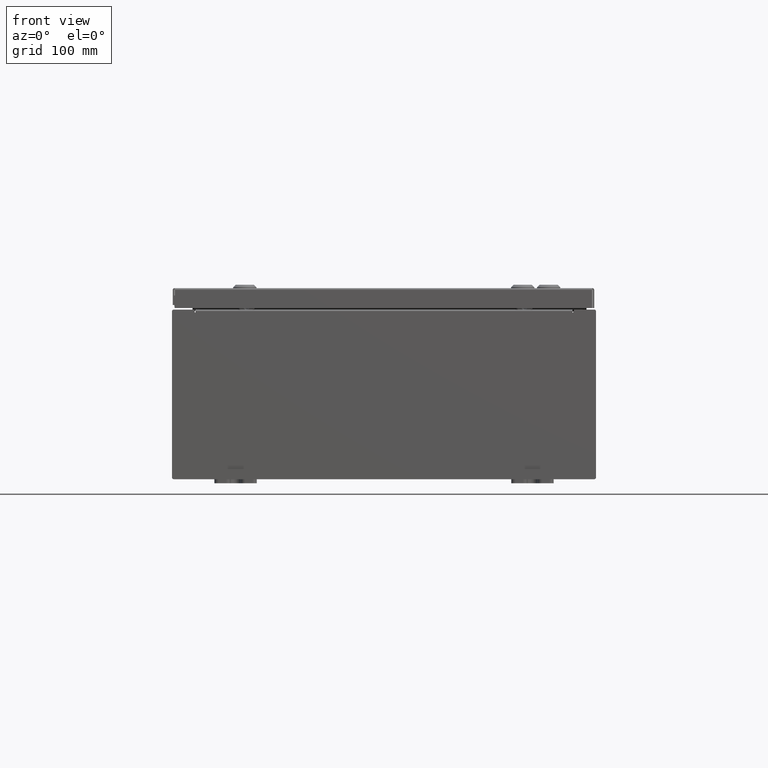
[diagram: clean part render]
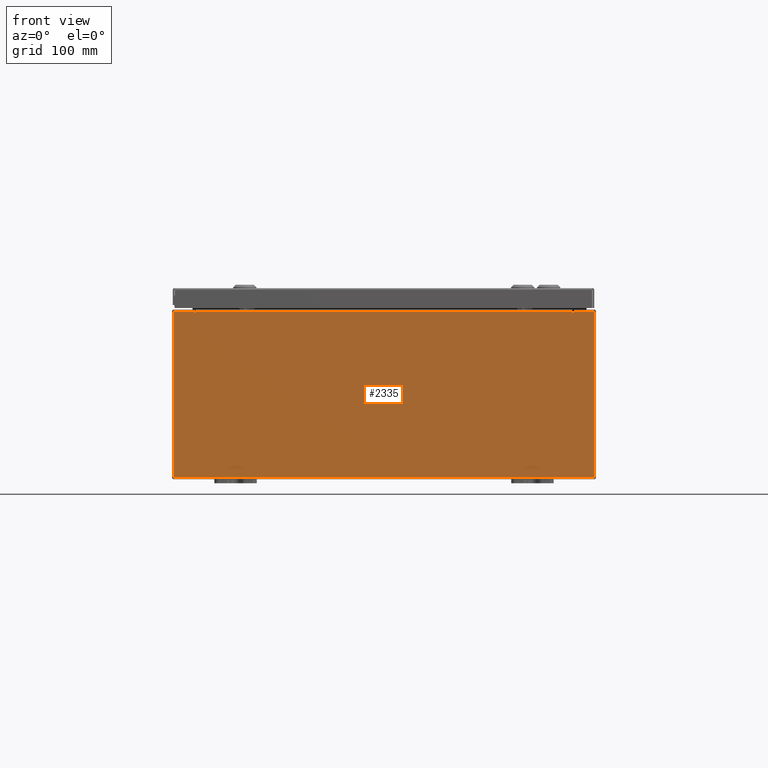
[diagram: same view with one face highlighted and labeled with its STEP entity id]
A machine part, front view. The second image highlights one B-rep face of the part: STEP entity #2335.
In plain terms, the highlighted planar face has unit normal (-0, 1, -0).
Its self-contained STEP definition (entity closure, byte-faithful):
#191 = CARTESIAN_POINT ( 'NONE',  ( 8.924549999999831200, -0.0000000000000000000, -3.873765880731813500E-013 ) ) ;
#490 = CARTESIAN_POINT ( 'NONE',  ( -8.905874999999998200, 0.0000000000000000000, 3.874949999999999700 ) ) ;
#541 = LINE ( 'NONE', #52134, #51121 ) ;
#1142 = ORIENTED_EDGE ( 'NONE', *, *, #18588, .F. ) ;
#1443 = LINE ( 'NONE', #4635, #11370 ) ;
#1983 = CARTESIAN_POINT ( 'NONE',  ( 8.924550000000000000, 0.0000000000000000000, 3.874949999999999700 ) ) ;
#2044 = ORIENTED_EDGE ( 'NONE', *, *, #51021, .F. ) ;
#2266 = LINE ( 'NONE', #22163, #51345 ) ;
#2335 = ADVANCED_FACE ( 'NONE', ( #9924 ), #49783, .F. ) ;
#2421 = ORIENTED_EDGE ( 'NONE', *, *, #62088, .T. ) ;
#2693 = DIRECTION ( 'NONE',  ( 1.000000000000000000, 0.0000000000000000000, 0.0000000000000000000 ) ) ;
#2920 = VECTOR ( 'NONE', #19784, 39.37007874015748100 ) ;
#4073 = ORIENTED_EDGE ( 'NONE', *, *, #62641, .T. ) ;
#4635 = CARTESIAN_POINT ( 'NONE',  ( -9.925300000000000000, 0.0000000000000000000, -3.925299999999999600 ) ) ;
#4818 = DIRECTION ( 'NONE',  ( -0.0000000000000000000, -0.0000000000000000000, 1.000000000000000000 ) ) ;
#5411 = DIRECTION ( 'NONE',  ( 0.0000000000000000000, 0.0000000000000000000, -1.000000000000000000 ) ) ;
#6343 = ORIENTED_EDGE ( 'NONE', *, *, #11928, .F. ) ;
#7389 = LINE ( 'NONE', #45868, #57980 ) ;
#8020 = ORIENTED_EDGE ( 'NONE', *, *, #43869, .F. ) ;
#8392 = LINE ( 'NONE', #9370, #58986 ) ;
#9370 = CARTESIAN_POINT ( 'NONE',  ( -8.887200000000000000, 1.024442997624098700E-016, 3.912299999999999700 ) ) ;
#9664 = CARTESIAN_POINT ( 'NONE',  ( 8.887200000000000000, 0.0000000000000000000, 3.912299999999999700 ) ) ;
#9924 = FACE_OUTER_BOUND ( 'NONE', #31774, .T. ) ;
#11370 = VECTOR ( 'NONE', #38451, 39.37007874015748100 ) ;
#11928 = EDGE_CURVE ( 'NONE', #31611, #57739, #28082, .T. ) ;
#14099 = VERTEX_POINT ( 'NONE', #34730 ) ;
#14280 = DIRECTION ( 'NONE',  ( 1.000000000000000000, 0.0000000000000000000, 0.0000000000000000000 ) ) ;
#14524 = CARTESIAN_POINT ( 'NONE',  ( 9.925300000000000000, 0.0000000000000000000, -3.925299999999999600 ) ) ;
#15288 = CARTESIAN_POINT ( 'NONE',  ( 8.905875000000000000, 0.0000000000000000000, 3.874949999999999700 ) ) ;
#17656 = ORIENTED_EDGE ( 'NONE', *, *, #54482, .T. ) ;
#17690 = CARTESIAN_POINT ( 'NONE',  ( 8.887200000000000000, 0.0000000000000000000, 3.874949999999999700 ) ) ;
#17714 = VERTEX_POINT ( 'NONE', #9664 ) ;
#18410 = CARTESIAN_POINT ( 'NONE',  ( -8.887200000000000000, -0.0000000000000000000, 3.874949999999999700 ) ) ;
#18588 = EDGE_CURVE ( 'NONE', #23178, #31611, #21860, .T. ) ;
#19220 = CARTESIAN_POINT ( 'NONE',  ( -9.925300000000000000, 0.0000000000000000000, 3.925299999999999600 ) ) ;
#19476 = AXIS2_PLACEMENT_3D ( 'NONE', #490, #34699, #5411 ) ;
#19784 = DIRECTION ( 'NONE',  ( 0.0000000000000000000, 0.0000000000000000000, -1.000000000000000000 ) ) ;
#19819 = LINE ( 'NONE', #19220, #31330 ) ;
#20205 = DIRECTION ( 'NONE',  ( 0.0000000000000000000, 0.0000000000000000000, -1.000000000000000000 ) ) ;
#21675 = CARTESIAN_POINT ( 'NONE',  ( 9.925300000000000000, 0.0000000000000000000, 3.925299999999999600 ) ) ;
#21860 = LINE ( 'NONE', #191, #59466 ) ;
#22163 = CARTESIAN_POINT ( 'NONE',  ( -9.925300000000000000, 0.0000000000000000000, 3.925299999999999600 ) ) ;
#23178 = VERTEX_POINT ( 'NONE', #56870 ) ;
#24981 = EDGE_CURVE ( 'NONE', #57739, #17714, #55223, .T. ) ;
#25125 = CARTESIAN_POINT ( 'NONE',  ( 0.0000000000000000000, 0.0000000000000000000, 0.0000000000000000000 ) ) ;
#25337 = DIRECTION ( 'NONE',  ( 0.0000000000000000000, -0.0000000000000000000, -1.000000000000000000 ) ) ;
#26309 = EDGE_CURVE ( 'NONE', #29768, #59868, #19819, .T. ) ;
#28082 = CIRCLE ( 'NONE', #55383, 0.01867500000000003900 ) ;
#28587 = EDGE_CURVE ( 'NONE', #39684, #29768, #1443, .T. ) ;
#29098 = VECTOR ( 'NONE', #54133, 39.37007874015748100 ) ;
#29519 = DIRECTION ( 'NONE',  ( 1.000000000000000000, 0.0000000000000000000, 0.0000000000000000000 ) ) ;
#29768 = VERTEX_POINT ( 'NONE', #52086 ) ;
#29836 = VERTEX_POINT ( 'NONE', #18410 ) ;
#31330 = VECTOR ( 'NONE', #4818, 39.37007874015748100 ) ;
#31452 = CIRCLE ( 'NONE', #19476, 0.01867500000000003900 ) ;
#31611 = VERTEX_POINT ( 'NONE', #1983 ) ;
#31627 = VERTEX_POINT ( 'NONE', #21675 ) ;
#31774 = EDGE_LOOP ( 'NONE', ( #8020, #2044, #40317, #17656, #35714, #6343, #1142, #2421, #4073, #39808, #33076, #32288 ) ) ;
#32288 = ORIENTED_EDGE ( 'NONE', *, *, #34332, .T. ) ;
#33076 = ORIENTED_EDGE ( 'NONE', *, *, #26309, .T. ) ;
#34332 = EDGE_CURVE ( 'NONE', #59868, #48237, #2266, .T. ) ;
#34395 = DIRECTION ( 'NONE',  ( -4.340572780400004900E-014, 0.0000000000000000000, -1.000000000000000000 ) ) ;
#34699 = DIRECTION ( 'NONE',  ( -0.0000000000000000000, 1.000000000000000000, -0.0000000000000000000 ) ) ;
#34730 = CARTESIAN_POINT ( 'NONE',  ( -8.887200000000000000, 1.024442997624098700E-016, 3.912299999999999700 ) ) ;
#35336 = CARTESIAN_POINT ( 'NONE',  ( -8.924550000000000000, 0.0000000000000000000, 3.925299999999999600 ) ) ;
#35714 = ORIENTED_EDGE ( 'NONE', *, *, #24981, .F. ) ;
#35991 = DIRECTION ( 'NONE',  ( 0.0000000000000000000, 0.0000000000000000000, 1.000000000000000000 ) ) ;
#36538 = CARTESIAN_POINT ( 'NONE',  ( -9.925300000000000000, 0.0000000000000000000, 3.925299999999999600 ) ) ;
#38451 = DIRECTION ( 'NONE',  ( -1.000000000000000000, -0.0000000000000000000, -0.0000000000000000000 ) ) ;
#38827 = VECTOR ( 'NONE', #29519, 39.37007874015748100 ) ;
#39684 = VERTEX_POINT ( 'NONE', #14524 ) ;
#39808 = ORIENTED_EDGE ( 'NONE', *, *, #28587, .T. ) ;
#40317 = ORIENTED_EDGE ( 'NONE', *, *, #60979, .F. ) ;
#43449 = LINE ( 'NONE', #53970, #38827 ) ;
#43504 = LINE ( 'NONE', #49186, #2920 ) ;
#43869 = EDGE_CURVE ( 'NONE', #53061, #48237, #7389, .T. ) ;
#45053 = CARTESIAN_POINT ( 'NONE',  ( -8.924549999999998200, 0.0000000000000000000, 3.874949999999999700 ) ) ;
#45868 = CARTESIAN_POINT ( 'NONE',  ( -8.924550000000000000, -0.0000000000000000000, 0.0000000000000000000 ) ) ;
#48167 = AXIS2_PLACEMENT_3D ( 'NONE', #25125, #54719, #25337 ) ;
#48237 = VERTEX_POINT ( 'NONE', #35336 ) ;
#49186 = CARTESIAN_POINT ( 'NONE',  ( -8.887200000000000000, -0.0000000000000000000, 0.0000000000000000000 ) ) ;
#49215 = CARTESIAN_POINT ( 'NONE',  ( 8.887200000000000000, 0.0000000000000000000, 0.0000000000000000000 ) ) ;
#49593 = DIRECTION ( 'NONE',  ( -0.0000000000000000000, 1.000000000000000000, -0.0000000000000000000 ) ) ;
#49783 = PLANE ( 'NONE',  #48167 ) ;
#51021 = EDGE_CURVE ( 'NONE', #29836, #53061, #31452, .T. ) ;
#51121 = VECTOR ( 'NONE', #52344, 39.37007874015748100 ) ;
#51345 = VECTOR ( 'NONE', #2693, 39.37007874015748100 ) ;
#52086 = CARTESIAN_POINT ( 'NONE',  ( -9.925300000000000000, 0.0000000000000000000, -3.925299999999999600 ) ) ;
#52134 = CARTESIAN_POINT ( 'NONE',  ( 9.925300000000000000, 0.0000000000000000000, 3.925299999999999600 ) ) ;
#52344 = DIRECTION ( 'NONE',  ( 0.0000000000000000000, 0.0000000000000000000, -1.000000000000000000 ) ) ;
#53061 = VERTEX_POINT ( 'NONE', #45053 ) ;
#53970 = CARTESIAN_POINT ( 'NONE',  ( -9.925300000000000000, 0.0000000000000000000, 3.925299999999999600 ) ) ;
#54133 = DIRECTION ( 'NONE',  ( 0.0000000000000000000, 0.0000000000000000000, 1.000000000000000000 ) ) ;
#54482 = EDGE_CURVE ( 'NONE', #14099, #17714, #8392, .T. ) ;
#54719 = DIRECTION ( 'NONE',  ( 0.0000000000000000000, -1.000000000000000000, 0.0000000000000000000 ) ) ;
#55223 = LINE ( 'NONE', #49215, #29098 ) ;
#55383 = AXIS2_PLACEMENT_3D ( 'NONE', #15288, #49593, #20205 ) ;
#56870 = CARTESIAN_POINT ( 'NONE',  ( 8.924550000000000000, 0.0000000000000000000, 3.925299999999999600 ) ) ;
#57739 = VERTEX_POINT ( 'NONE', #17690 ) ;
#57980 = VECTOR ( 'NONE', #35991, 39.37007874015748100 ) ;
#58986 = VECTOR ( 'NONE', #14280, 39.37007874015748100 ) ;
#59466 = VECTOR ( 'NONE', #34395, 39.37007874015748100 ) ;
#59868 = VERTEX_POINT ( 'NONE', #36538 ) ;
#60979 = EDGE_CURVE ( 'NONE', #14099, #29836, #43504, .T. ) ;
#62088 = EDGE_CURVE ( 'NONE', #23178, #31627, #43449, .T. ) ;
#62641 = EDGE_CURVE ( 'NONE', #31627, #39684, #541, .T. ) ;